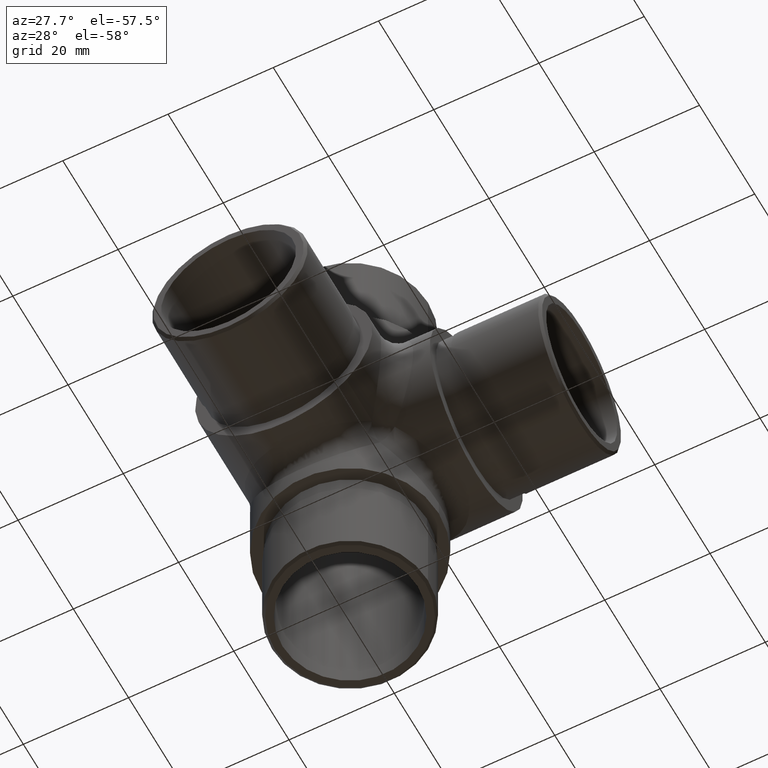
[diagram: clean part render]
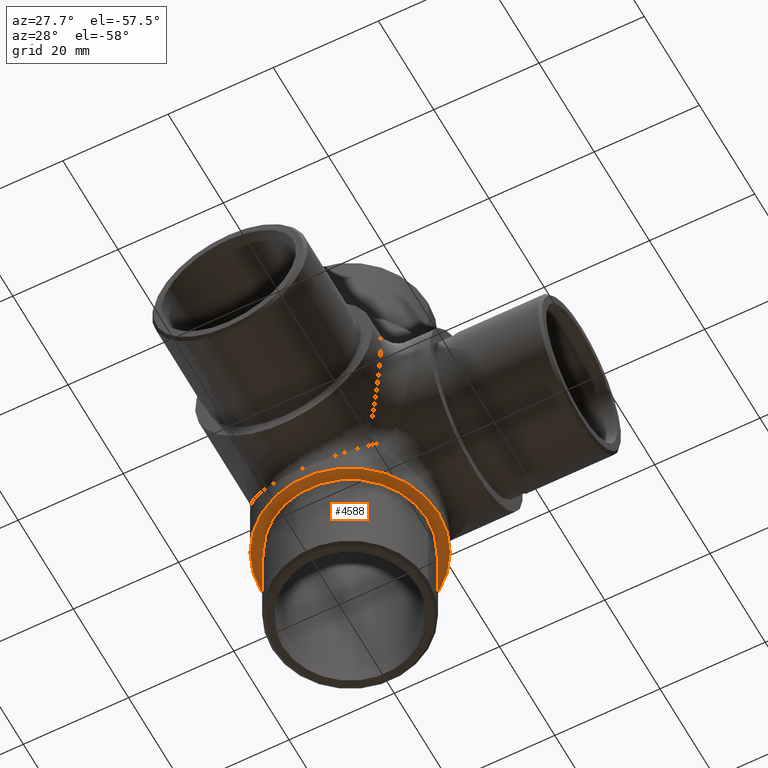
[diagram: same view with one face highlighted and labeled with its STEP entity id]
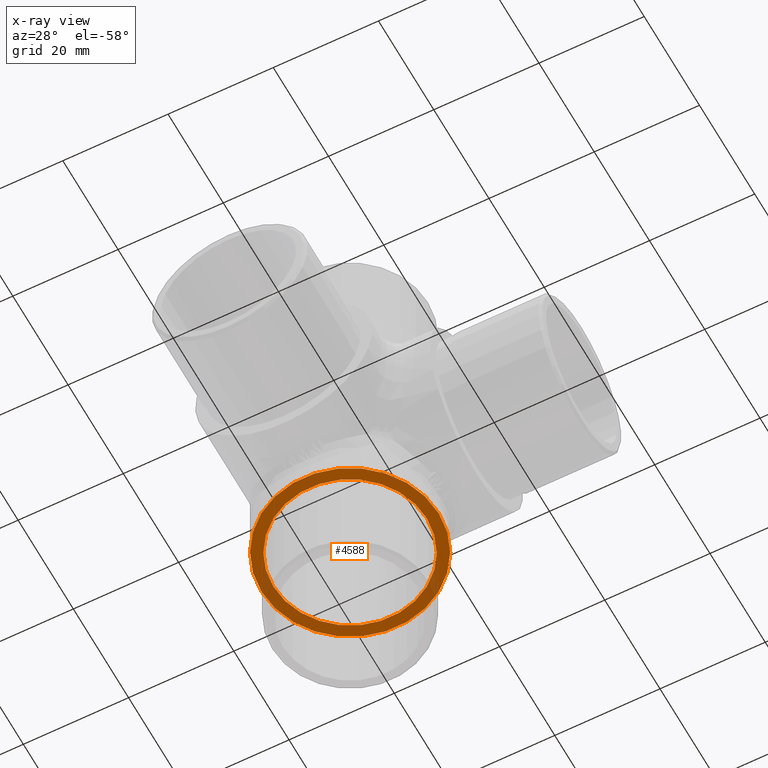
[diagram: x-ray of the same camera — body ghosted, the highlighted face saturated]
A machine part, auxiliary view. The second image highlights one B-rep face of the part: STEP entity #4588.
The next image is the same camera in x-ray: the body ghosted, the highlighted face saturated — about 10% of this face is hidden behind the body in this view.
In plain terms, the highlighted planar face has unit normal (0, 0, 1).
Its self-contained STEP definition (entity closure, byte-faithful):
#605 = DIRECTION ( 'NONE',  ( 0.0000000000000000000, 0.0000000000000000000, 1.000000000000000000 ) ) ;
#1348 = DIRECTION ( 'NONE',  ( 1.000000000000000000, 0.0000000000000000000, 0.0000000000000000000 ) ) ;
#2326 = EDGE_CURVE ( 'NONE', #2347, #2347, #11350, .T. ) ;
#2347 = VERTEX_POINT ( 'NONE', #12116 ) ;
#3243 = FACE_OUTER_BOUND ( 'NONE', #4879, .T. ) ;
#3354 = DIRECTION ( 'NONE',  ( -0.0000000000000000000, -0.0000000000000000000, 1.000000000000000000 ) ) ;
#3623 = AXIS2_PLACEMENT_3D ( 'NONE', #12733, #3354, #1348 ) ;
#3811 = VERTEX_POINT ( 'NONE', #9861 ) ;
#4588 = ADVANCED_FACE ( 'NONE', ( #7242, #3243 ), #6721, .F. ) ;
#4719 = DIRECTION ( 'NONE',  ( 0.0000000000000000000, 0.0000000000000000000, 1.000000000000000000 ) ) ;
#4879 = EDGE_LOOP ( 'NONE', ( #13059 ) ) ;
#5226 = AXIS2_PLACEMENT_3D ( 'NONE', #6779, #605, #11087 ) ;
#6721 = PLANE ( 'NONE',  #10674 ) ;
#6779 = CARTESIAN_POINT ( 'NONE',  ( 0.0000000000000000000, 44.00000000000000000, -24.00000000000000000 ) ) ;
#7242 = FACE_BOUND ( 'NONE', #11599, .T. ) ;
#7765 = CARTESIAN_POINT ( 'NONE',  ( 0.0000000000000000000, 44.00000000000000000, -24.00000000000000000 ) ) ;
#8891 = DIRECTION ( 'NONE',  ( 1.000000000000000000, 0.0000000000000000000, -0.0000000000000000000 ) ) ;
#9861 = CARTESIAN_POINT ( 'NONE',  ( 14.60000000000000000, 44.00000000000000000, -24.00000000000000000 ) ) ;
#10298 = ORIENTED_EDGE ( 'NONE', *, *, #10466, .T. ) ;
#10466 = EDGE_CURVE ( 'NONE', #3811, #3811, #11096, .T. ) ;
#10674 = AXIS2_PLACEMENT_3D ( 'NONE', #7765, #4719, #8891 ) ;
#11087 = DIRECTION ( 'NONE',  ( 1.000000000000000000, 0.0000000000000000000, 0.0000000000000000000 ) ) ;
#11096 = CIRCLE ( 'NONE', #3623, 14.60000000000000000 ) ;
#11350 = CIRCLE ( 'NONE', #5226, 16.85000000000000100 ) ;
#11599 = EDGE_LOOP ( 'NONE', ( #10298 ) ) ;
#12116 = CARTESIAN_POINT ( 'NONE',  ( 16.85000000000000100, 44.00000000000000000, -24.00000000000000000 ) ) ;
#12733 = CARTESIAN_POINT ( 'NONE',  ( 0.0000000000000000000, 44.00000000000000000, -24.00000000000000000 ) ) ;
#13059 = ORIENTED_EDGE ( 'NONE', *, *, #2326, .F. ) ;